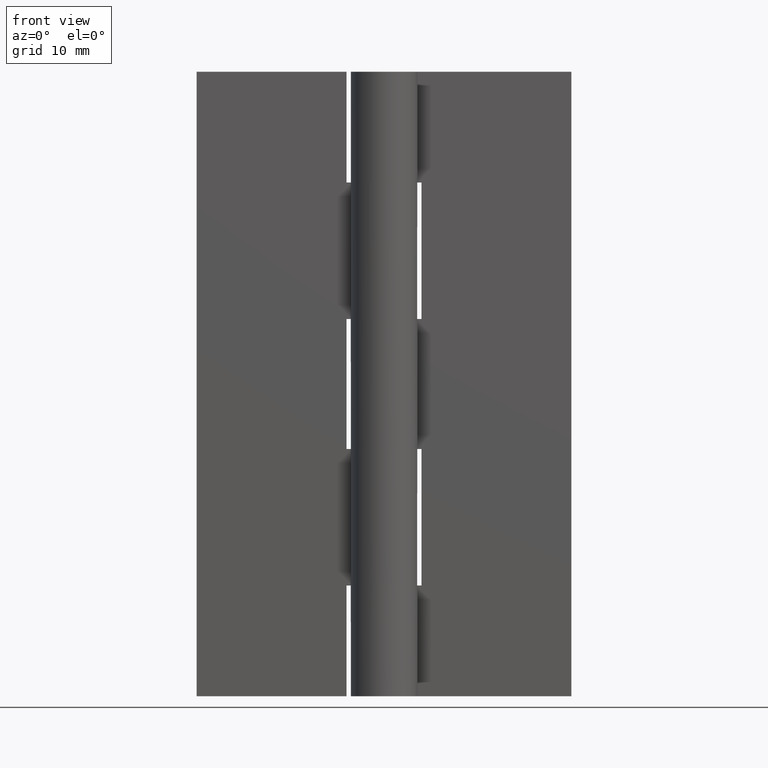
[diagram: clean part render]
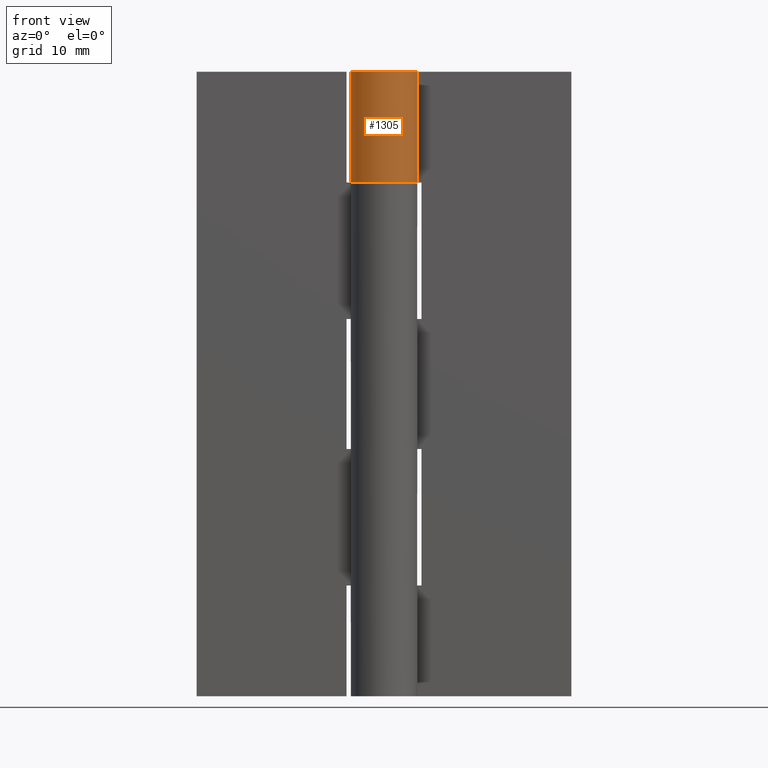
[diagram: same view with one face highlighted and labeled with its STEP entity id]
A machine part, front view. The second image highlights one B-rep face of the part: STEP entity #1305.
In plain terms, the highlighted face is a freeform B-spline surface patch.
Its self-contained STEP definition (entity closure, byte-faithful):
#1076=CARTESIAN_POINT('',(3.492491947020065,1.950000000000000,61.699997000000103));
#1077=VERTEX_POINT('',#1076);
#1083=CARTESIAN_POINT('',(0.0,4.0,61.699997000000003));
#1084=VERTEX_POINT('',#1083);
#1085=CARTESIAN_POINT('',(3.492491947020065,1.949999999999999,61.699997000000103));
#1086=CARTESIAN_POINT('',(4.983220411952646,-0.719926748190065,61.699997000000103));
#1087=CARTESIAN_POINT('',(2.797770204447355,-2.858755303118231,61.699997000000103));
#1088=CARTESIAN_POINT('',(0.612319996942063,-4.997583858046395,61.699997000000103));
#1089=CARTESIAN_POINT('',(-2.024845673131658,-3.449637662132068,61.699997000000103));
#1090=CARTESIAN_POINT('',(-4.662011343205381,-1.901691466217742,61.699997000000103));
#1091=CARTESIAN_POINT('',(-3.859957943328416,1.049154266891129,61.699997000000103));
#1092=CARTESIAN_POINT('',(-3.057904543451453,4.0,61.699997000000103));
#1093=CARTESIAN_POINT('',(0.0,4.0,61.699997000000103));
#1101=(BOUNDED_CURVE()B_SPLINE_CURVE(2,(#1085,#1086,#1087,#1088,#1089,#1090,#1091,#1092,#1093),.UNSPECIFIED.,.F.,.U.)B_SPLINE_CURVE_WITH_KNOTS((3,2,2,2,3),(0.0,0.250000000000000,0.500000000000000,0.750000000000000,1.0),.UNSPECIFIED.)CURVE()GEOMETRIC_REPRESENTATION_ITEM()RATIONAL_B_SPLINE_CURVE((1.0,0.794445897063728,1.0,0.794445897063728,1.0,0.794445897063728,1.0,0.794445897063728,1.0))REPRESENTATION_ITEM(''));
#1102=EDGE_CURVE('',#1077,#1084,#1101,.T.);
#1196=CARTESIAN_POINT('',(-7.347638E-016,4.0,75.0));
#1197=VERTEX_POINT('',#1196);
#1205=CARTESIAN_POINT('',(3.492491947020065,1.950000000000000,75.0));
#1206=VERTEX_POINT('',#1205);
#1207=CARTESIAN_POINT('',(3.492491947020065,1.949999999999999,75.0));
#1208=CARTESIAN_POINT('',(4.983220411952646,-0.719926748190065,75.0));
#1209=CARTESIAN_POINT('',(2.797770204447355,-2.858755303118231,75.0));
#1210=CARTESIAN_POINT('',(0.612319996942063,-4.997583858046395,75.0));
#1211=CARTESIAN_POINT('',(-2.024845673131658,-3.449637662132068,75.0));
#1212=CARTESIAN_POINT('',(-4.662011343205381,-1.901691466217742,75.0));
#1213=CARTESIAN_POINT('',(-3.859957943328416,1.049154266891129,75.0));
#1214=CARTESIAN_POINT('',(-3.057904543451453,4.0,75.0));
#1215=CARTESIAN_POINT('',(0.0,4.0,75.0));
#1223=(BOUNDED_CURVE()B_SPLINE_CURVE(2,(#1207,#1208,#1209,#1210,#1211,#1212,#1213,#1214,#1215),.UNSPECIFIED.,.F.,.U.)B_SPLINE_CURVE_WITH_KNOTS((3,2,2,2,3),(0.0,0.250000000000000,0.500000000000000,0.750000000000000,1.0),.UNSPECIFIED.)CURVE()GEOMETRIC_REPRESENTATION_ITEM()RATIONAL_B_SPLINE_CURVE((1.0,0.794445897063728,1.0,0.794445897063728,1.0,0.794445897063728,1.0,0.794445897063728,1.0))REPRESENTATION_ITEM(''));
#1224=EDGE_CURVE('',#1206,#1197,#1223,.T.);
#1269=CARTESIAN_POINT('',(0.162173709109514,3.996711108908630,75.332500075000013));
#1270=CARTESIAN_POINT('',(0.162173709109514,3.996711108908630,61.359184423124987));
#1271=CARTESIAN_POINT('',(-4.773353474773805,4.196978961152711,75.332500075000013));
#1272=CARTESIAN_POINT('',(-4.773353474773805,4.196978961152711,61.359184423125001));
#1273=CARTESIAN_POINT('',(-3.943091192072271,-0.672333139895742,75.332500075000013));
#1274=CARTESIAN_POINT('',(-3.943091192072271,-0.672333139895742,61.359184423124987));
#1275=CARTESIAN_POINT('',(-3.112828909370736,-5.541645240944193,75.332500075000013));
#1276=CARTESIAN_POINT('',(-3.112828909370736,-5.541645240944193,61.359184423125001));
#1277=CARTESIAN_POINT('',(1.477455804475205,-3.717139269091557,75.332500075000013));
#1278=CARTESIAN_POINT('',(1.477455804475205,-3.717139269091557,61.359184423124987));
#1279=CARTESIAN_POINT('',(6.067740518321146,-1.892633297238919,75.332500075000013));
#1280=CARTESIAN_POINT('',(6.067740518321146,-1.892633297238919,61.359184423125001));
#1281=CARTESIAN_POINT('',(3.328730523238366,2.218006560779571,75.332500075000013));
#1282=CARTESIAN_POINT('',(3.328730523238366,2.218006560779571,61.359184423124987));
#1290=(BOUNDED_SURFACE()B_SPLINE_SURFACE(1,2,((#1269,#1271,#1273,#1275,#1277,#1279,#1281),(#1270,#1272,#1274,#1276,#1278,#1280,#1282)),.UNSPECIFIED.,.F.,.F.,.U.)B_SPLINE_SURFACE_WITH_KNOTS((2,2),(3,2,2,3),(0.0,13.973315651875019),(0.0,7.631608523170560,15.263217046341120,22.894825569511681),.UNSPECIFIED.)GEOMETRIC_REPRESENTATION_ITEM()RATIONAL_B_SPLINE_SURFACE(((1.0,0.629320391049838,1.0,0.629320391049838,1.0,0.629320391049838,1.0),(1.0,0.629320391049838,1.0,0.629320391049838,1.0,0.629320391049838,1.0)))REPRESENTATION_ITEM('')SURFACE());
#1291=CARTESIAN_POINT('',(-7.347638E-016,4.0,75.0));
#1292=CARTESIAN_POINT('',(0.0,4.0,61.699997000000003));
#1293=QUASI_UNIFORM_CURVE('',1,(#1291,#1292),.UNSPECIFIED.,.F.,.U.);
#1294=EDGE_CURVE('',#1197,#1084,#1293,.T.);
#1295=ORIENTED_EDGE('',*,*,#1294,.T.);
#1296=ORIENTED_EDGE('',*,*,#1102,.F.);
#1297=CARTESIAN_POINT('',(3.492491947020065,1.950000000000000,75.0));
#1298=CARTESIAN_POINT('',(3.492491947020065,1.950000000000000,61.699997000000103));
#1299=QUASI_UNIFORM_CURVE('',1,(#1297,#1298),.UNSPECIFIED.,.F.,.U.);
#1300=EDGE_CURVE('',#1206,#1077,#1299,.T.);
#1301=ORIENTED_EDGE('',*,*,#1300,.F.);
#1302=ORIENTED_EDGE('',*,*,#1224,.T.);
#1303=EDGE_LOOP('',(#1295,#1296,#1301,#1302));
#1304=FACE_OUTER_BOUND('',#1303,.T.);
#1305=ADVANCED_FACE('',(#1304),#1290,.T.);